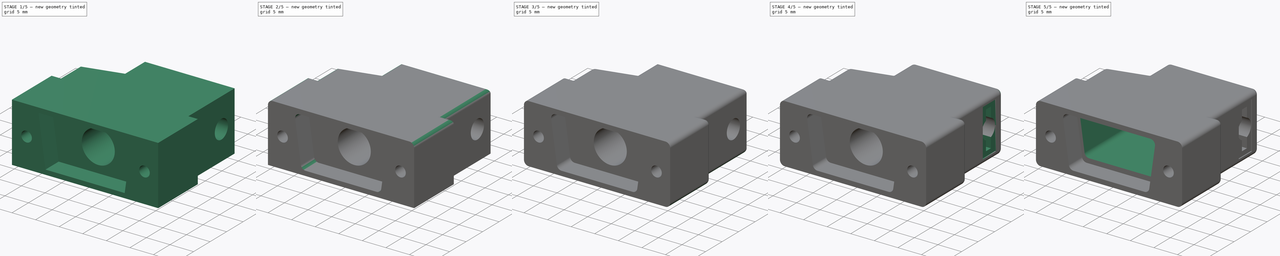
[diagram: build sequence overview — one tinted view per stage of 5, left to right]
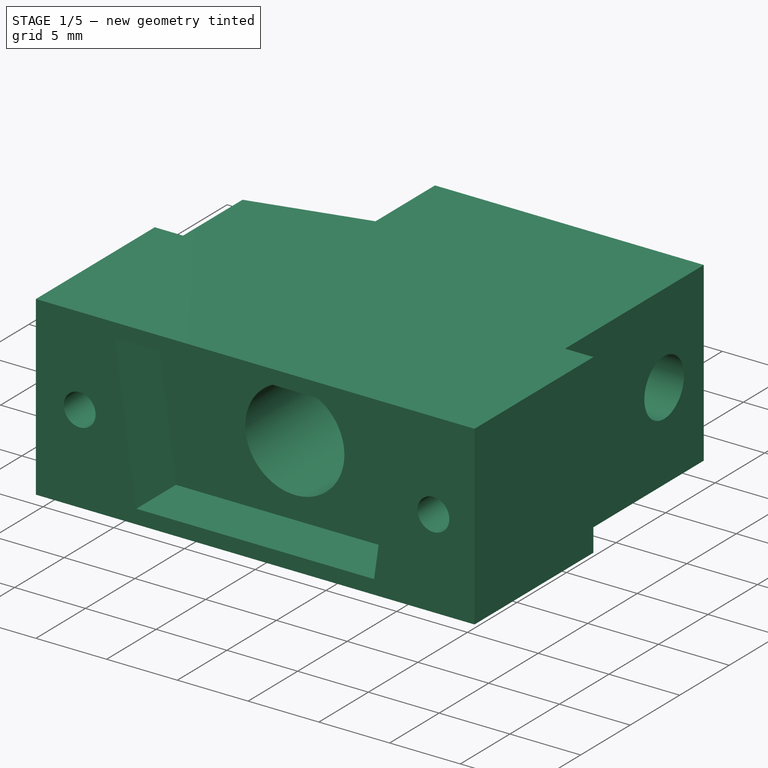
[diagram: stage 1 of 5 — iso view after this stage's code; geometry added in this stage tinted green]
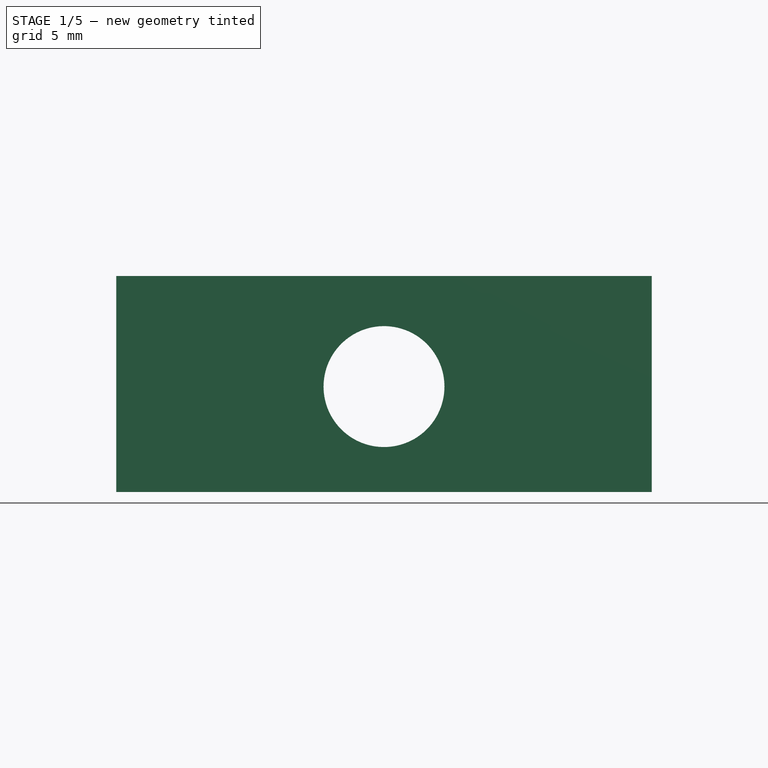
[diagram: stage 1 of 5 — front view after this stage's code; geometry added in this stage tinted green]
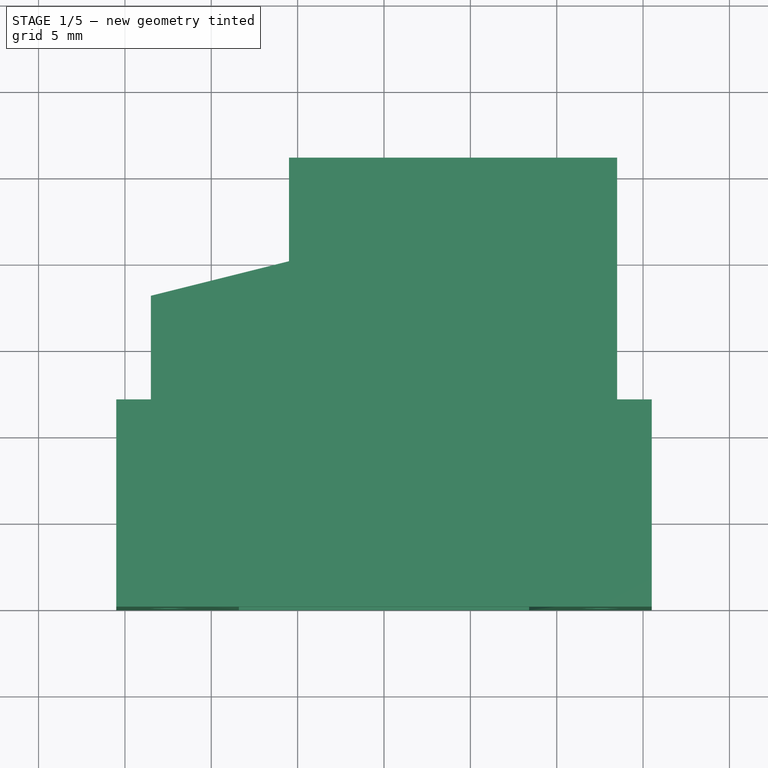
[diagram: stage 1 of 5 — top view after this stage's code; geometry added in this stage tinted green]
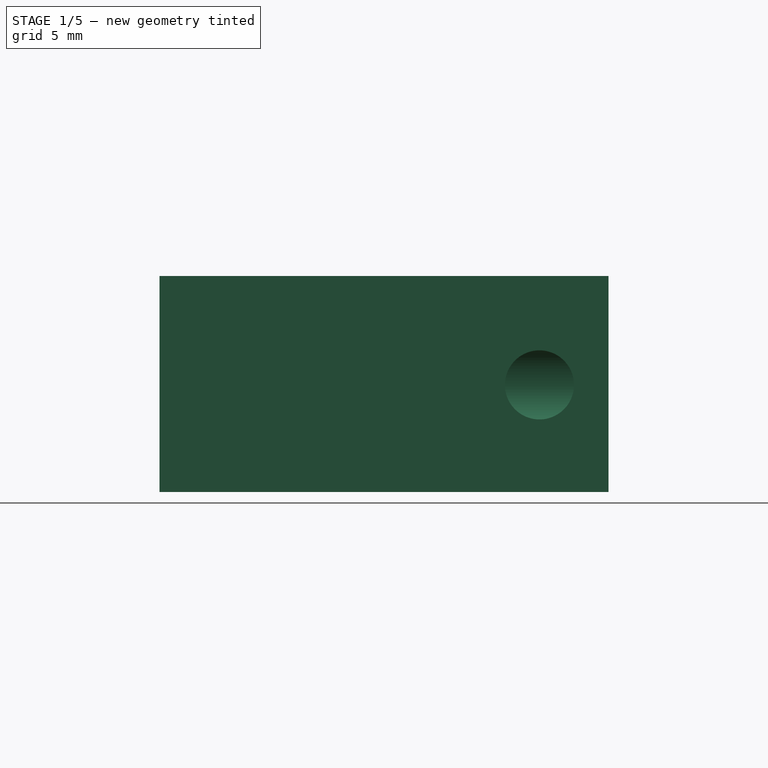
[diagram: stage 1 of 5 — right view after this stage's code; geometry added in this stage tinted green]
FCSTD DOCUMENT  (FreeCAD 0.19R24291 (Git))
Label: ConnectorHousing010
License: All rights reserved
LicenseURL: http://en.wikipedia.org/wiki/All_rights_reserved
objects: PartDesign::Fillet×18, Sketcher::SketchObject×9, PartDesign::Pocket×7, PartDesign::Pad×1, PartDesign::Body×1
note: 62 computed .brp shape members not serialized (recipe doc carries the construction recipe); baked Part::Feature solids carry a one-line shape summary decoded from their .brp

FEATURE [Sketcher::SketchObject] Sketch
  FullyConstrained = true
  MapMode = 5
  Support = -> [XY_Plane]
  sketch-geometry (10):
    g0: LineSegment StartX=-15.5 StartY=0 StartZ=0 EndX=15.5 EndY=0 EndZ=0
    g1: LineSegment StartX=15.5 StartY=0 StartZ=0 EndX=15.5 EndY=12 EndZ=0
    g2: LineSegment StartX=15.5 StartY=12 StartZ=0 EndX=13.5 EndY=12 EndZ=0
    g3: LineSegment StartX=13.5 StartY=12 StartZ=0 EndX=13.5 EndY=26 EndZ=0
    g4: LineSegment StartX=13.5 StartY=26 StartZ=0 EndX=-5.5 EndY=26 EndZ=0
    g5: LineSegment StartX=-5.5 StartY=26 StartZ=0 EndX=-5.5 EndY=20 EndZ=0
    g6: LineSegment StartX=-5.5 StartY=20 StartZ=0 EndX=-13.5 EndY=18 EndZ=0
    g7: LineSegment StartX=-13.5 StartY=18 StartZ=0 EndX=-13.5 EndY=12 EndZ=0
    g8: LineSegment StartX=-13.5 StartY=12 StartZ=0 EndX=-15.5 EndY=12 EndZ=0
    g9: LineSegment StartX=-15.5 StartY=12 StartZ=0 EndX=-15.5 EndY=0 EndZ=0
  constraints (29):
    c: PointOnObject(g0,g-1)
    c: Coincident(g0,g1)
    c: Vertical(g1)
    c: Coincident(g1,g2)
    c: Coincident(g2,g3)
    c: Vertical(g3)
    c: Coincident(g3,g4)
    c: Horizontal(g4)
    c: Coincident(g4,g5)
    c: Vertical(g5)
    c: Coincident(g5,g6)
    c: Coincident(g6,g7)
    c: Vertical(g7)
    c: Coincident(g7,g8)
    c: Coincident(g8,g9)
    c: Coincident(g9,g0)
    c: Vertical(g9)
    c: DistanceX(g0,g0) = 31
    c: DistanceY(g0,g3) = 26
    c: DistanceY(g1,g8) = 0
    c: DistanceY(g2,g7) = 0
    c: DistanceY(g0,g1) = 12
    c: DistanceY(g1,g2) = 0
    c: DistanceX(g2,g1) = 2
    c: DistanceX(g8,g7) = 2
    c: DistanceX(g4,g3) = 19
    c: Symmetric(g0,g0,g-2)
    c: DistanceY(g5,g4) = 6
    c: DistanceY(g7,g6) = 6
FEATURE [PartDesign::Pad] Pad
  Direction = (1,1,1)
  Length = 12.5
  Length2 = 100
  Profile = -> Sketch
  Type = 0
FEATURE [Sketcher::SketchObject] Sketch001
  FullyConstrained = true
  MapMode = 5
  Placement = pos=(0,26,0) rot=(0,0.707107,0.707107;3.14159rad)
  Support = -> [Pad]
  sketch-geometry (1):
    g0: Circle CenterX=0 CenterY=6.1 CenterZ=0 NormalX=0 NormalY=0 NormalZ=1 AngleXU=0 Radius=3.5
  constraints (3):
    c: DistanceY(g-1,g0) = 6.1
    c: DistanceX(g0,g-1) = 0
    c: Diameter(g0) = 7
FEATURE [Sketcher::SketchObject] Sketch002
  FullyConstrained = true
  MapMode = 5
  Placement = pos=(0,0,0) rot=(1,0,0;1.5708rad)
  Support = -> [Pad]
  sketch-geometry (4):
    g0: LineSegment StartX=-9.9 StartY=11.5 StartZ=0 EndX=9.9 EndY=11.5 EndZ=0
    g1: LineSegment StartX=9.9 StartY=11.5 StartZ=0 EndX=8.4 EndY=1 EndZ=0
    g2: LineSegment StartX=8.4 StartY=1 StartZ=0 EndX=-8.4 EndY=1 EndZ=0
    g3: LineSegment StartX=-8.4 StartY=1 StartZ=0 EndX=-9.9 EndY=11.5 EndZ=0
  constraints (10):
    c: Coincident(g0,g1)
    c: Coincident(g1,g2)
    c: Coincident(g2,g3)
    c: Coincident(g3,g0)
    c: DistanceX(g0,g0) = 19.8
    c: Symmetric(g0,g0,g-2)
    c: Symmetric(g2,g1,g-2)
    c: DistanceX(g2,g1) = 16.8
    c: DistanceY(g1,g0) = 10.5
    c: DistanceY(g-1,g0) = 11.5
FEATURE [PartDesign::Pocket] Pocket
  BaseFeature = -> Pad
  Length = 4
  Length2 = 100
  Profile = -> Sketch002
  Type = 0
FEATURE [PartDesign::Pocket] Pocket001
  BaseFeature = -> Pocket
  Length = 5
  Length2 = 100
  Profile = -> Sketch001
  Type = 1
FEATURE [Sketcher::SketchObject] Sketch003
  ExternalGeometry = -> [Pocket001]
  FullyConstrained = false
  MapMode = 5
  Placement = pos=(13.5,0,0) rot=(0.57735,0.57735,0.57735;2.0944rad)
  Support = -> [Pocket001]
  sketch-geometry (1):
    g0: Circle CenterX=22 CenterY=6.19827 CenterZ=0 NormalX=0 NormalY=0 NormalZ=1 AngleXU=0 Radius=2
  constraints (2):
    c: DistanceX(g0,g-3) = 4
    c: Diameter(g0) = 4
FEATURE [PartDesign::Pocket] Pocket002
  BaseFeature = -> Pocket001
  Length = 5
  Length2 = 100
  Profile = -> Sketch003
  Type = 2
FEATURE [Sketcher::SketchObject] Sketch004
  FullyConstrained = false
  MapMode = 5
  Placement = pos=(0,0,0) rot=(1,0,0;1.5708rad)
  Support = -> [Pocket002]
  sketch-geometry (2):
    g0: Circle CenterX=-12.4066 CenterY=6.25 CenterZ=0 NormalX=0 NormalY=0 NormalZ=1 AngleXU=0 Radius=1.125
    g1: Circle CenterX=12.5934 CenterY=6.25 CenterZ=0 NormalX=0 NormalY=0 NormalZ=1 AngleXU=0 Radius=1.125
  constraints (5):
    c: Diameter(g0) = 2.25
    c: Diameter(g1) = 2.25
    c: DistanceY(g1,g0) = 0
    c: DistanceX(g0,g1) = 25
    c: DistanceY(g-1,g1) = 6.25
FEATURE [PartDesign::Pocket] Pocket003
  BaseFeature = -> Pocket002
  Length = 8
  Length2 = 100
  Profile = -> Sketch004
  Type = 0
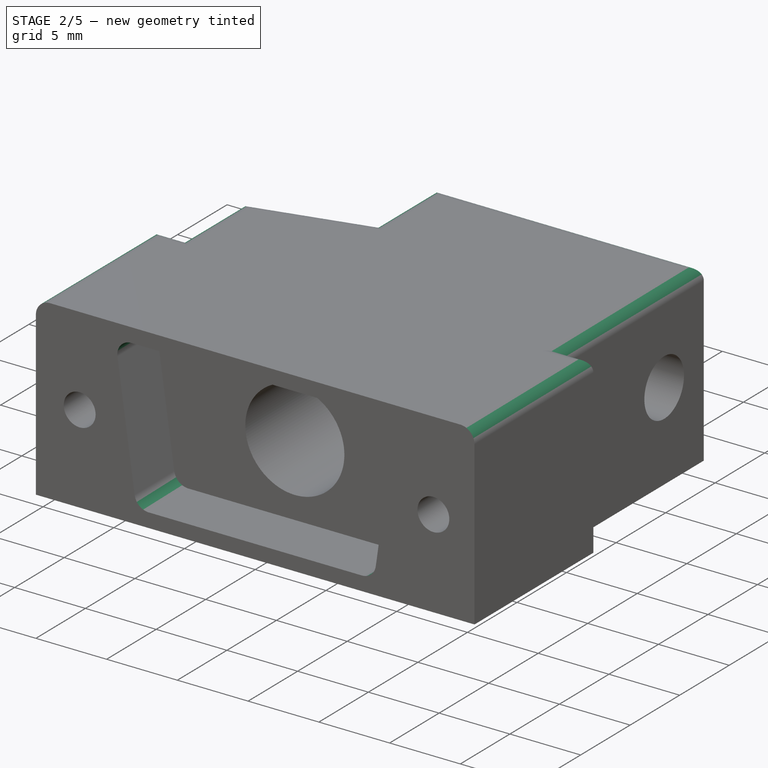
[diagram: stage 2 of 5 — iso view after this stage's code; geometry added in this stage tinted green]
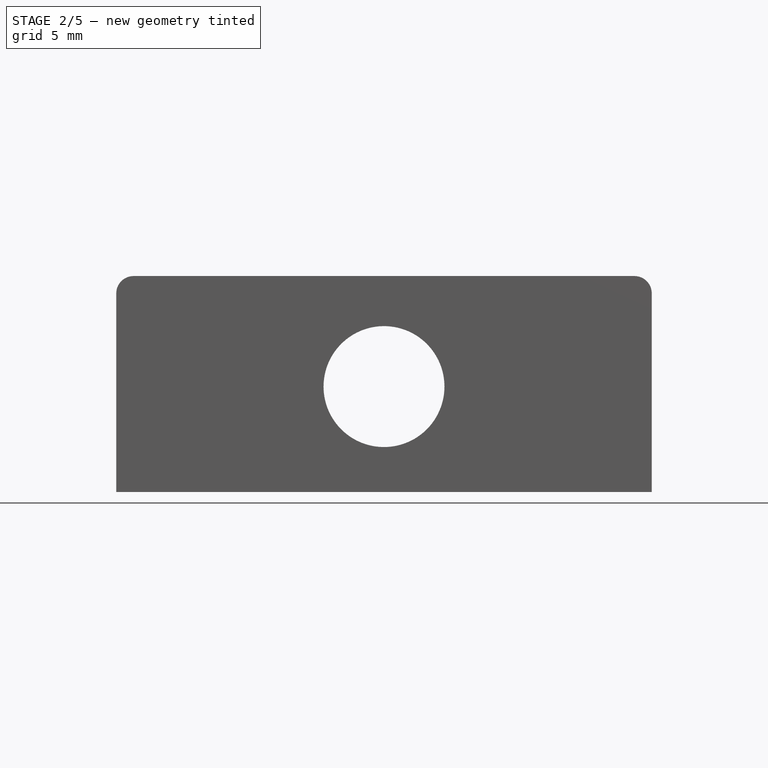
[diagram: stage 2 of 5 — front view after this stage's code; geometry added in this stage tinted green]
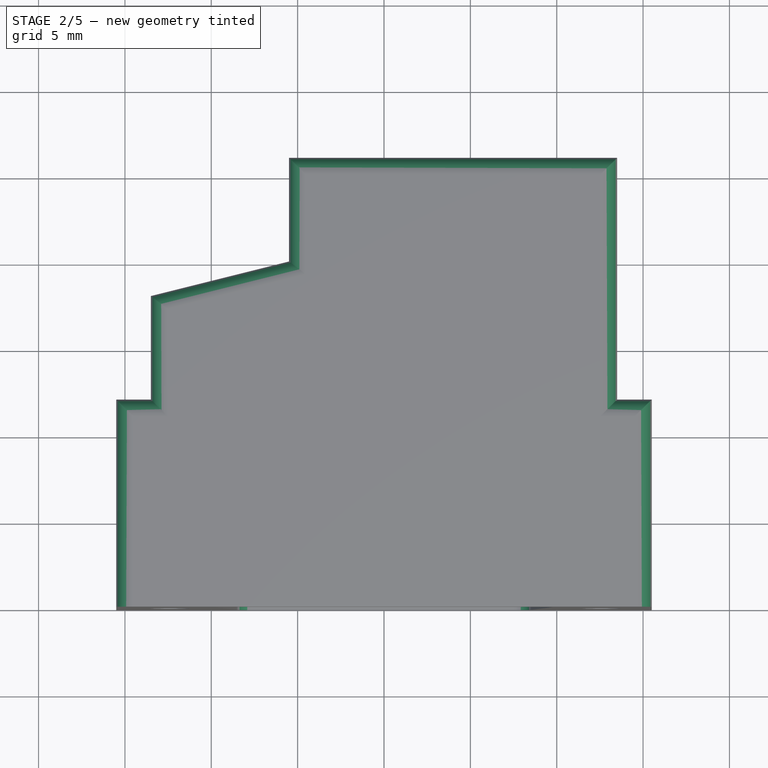
[diagram: stage 2 of 5 — top view after this stage's code; geometry added in this stage tinted green]
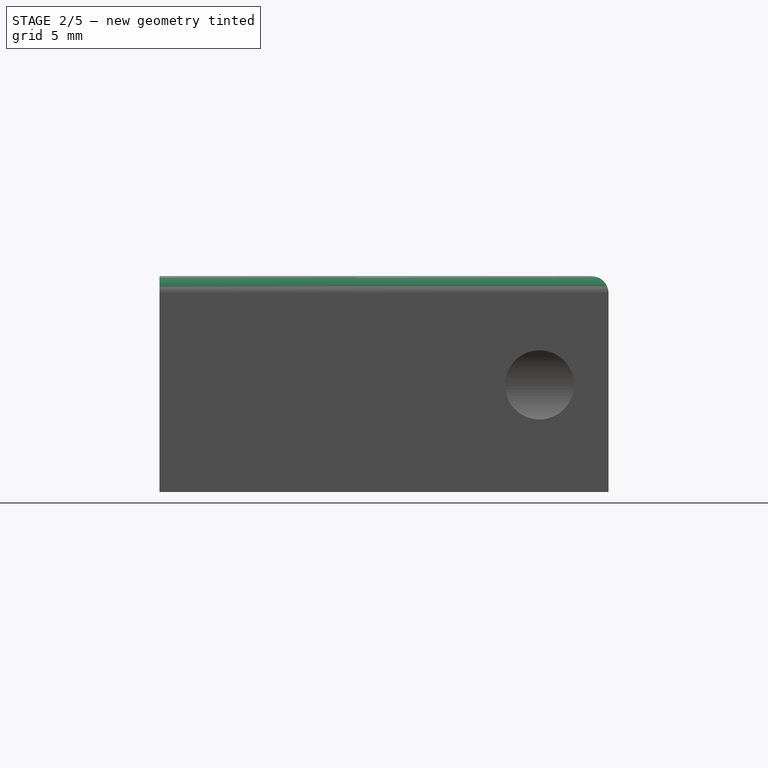
[diagram: stage 2 of 5 — right view after this stage's code; geometry added in this stage tinted green]
FEATURE [PartDesign::Fillet] Fillet
  Base = -> Pocket003 [Edge38]
  BaseFeature = -> Pocket003
  Radius = 1
  SupportTransform = false
FEATURE [PartDesign::Fillet] Fillet001
  Base = -> Fillet [Edge19]
  BaseFeature = -> Fillet
  Radius = 1
  SupportTransform = false
FEATURE [PartDesign::Fillet] Fillet002
  Base = -> Fillet001 [Edge20]
  BaseFeature = -> Fillet001
  Radius = 1
  SupportTransform = false
FEATURE [PartDesign::Fillet] Fillet003
  Base = -> Fillet002 [Edge21]
  BaseFeature = -> Fillet002
  Radius = 1
  SupportTransform = false
FEATURE [PartDesign::Fillet] Fillet004
  Base = -> Fillet003 [Edge42,Edge43,Edge44,Edge45,Edge46,Edge47,Edge48,Edge49,Edge33]
  BaseFeature = -> Fillet003
  Radius = 1
  SupportTransform = false
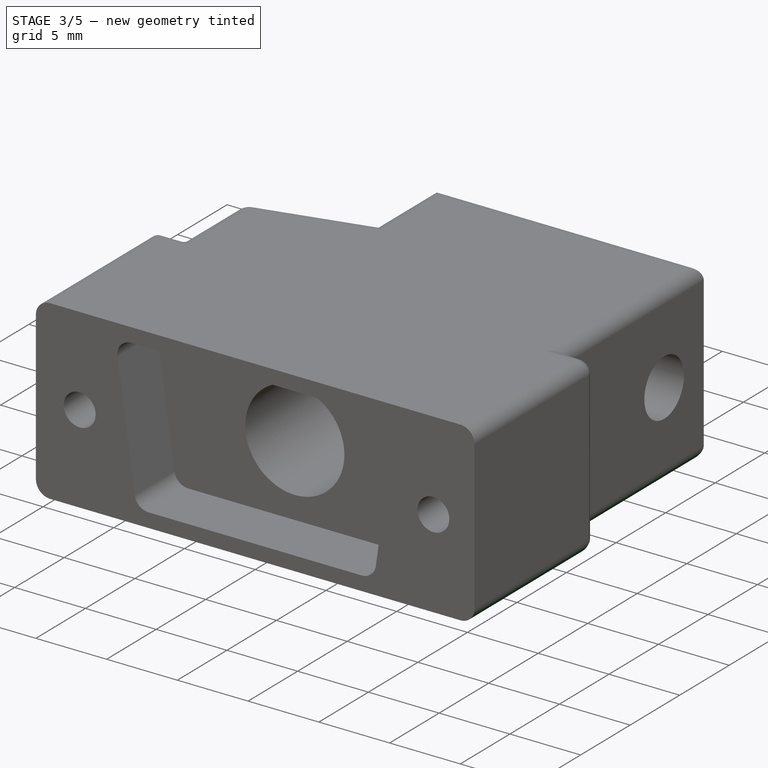
[diagram: stage 3 of 5 — iso view after this stage's code; geometry added in this stage tinted green]
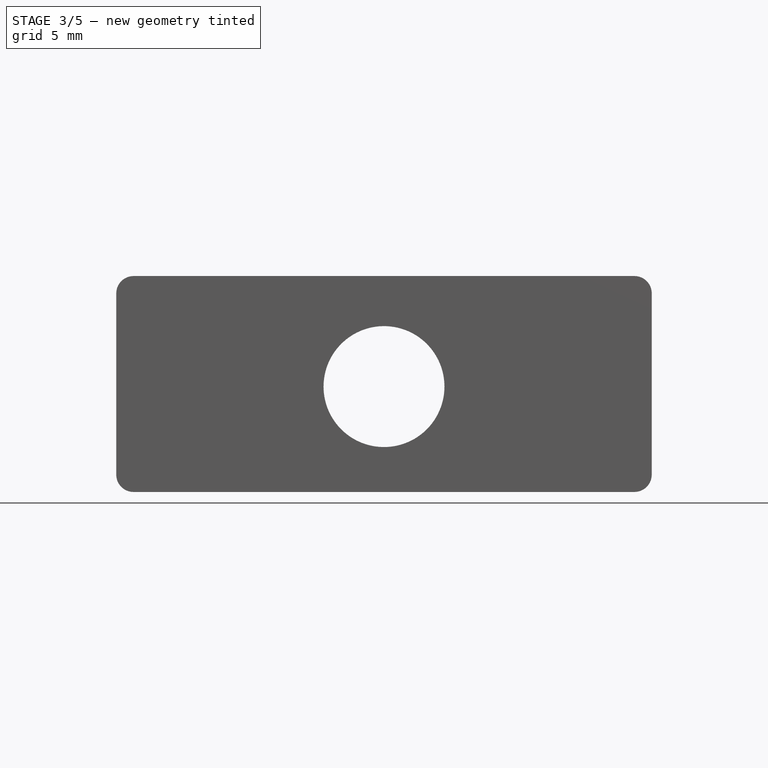
[diagram: stage 3 of 5 — front view after this stage's code; geometry added in this stage tinted green]
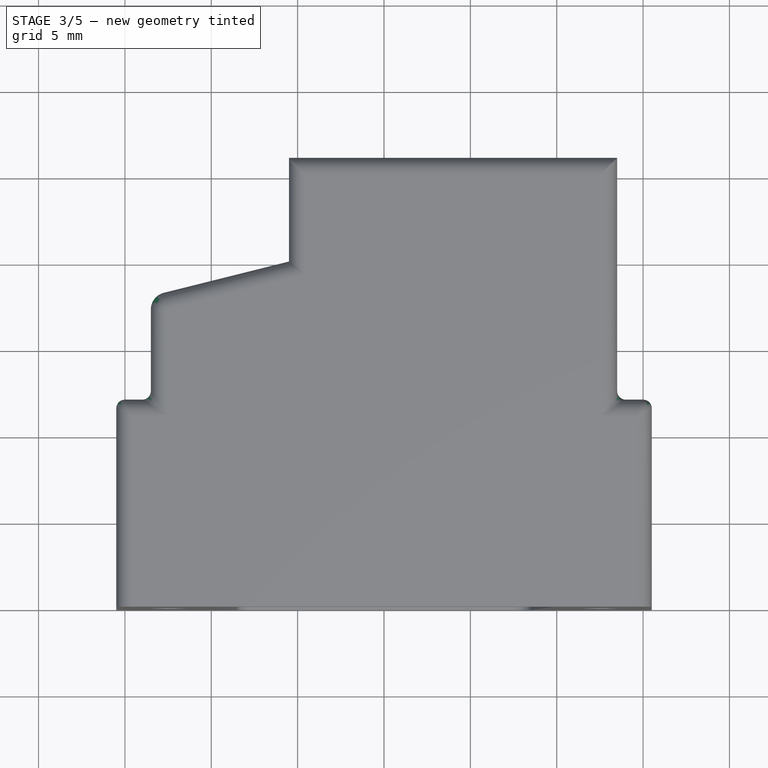
[diagram: stage 3 of 5 — top view after this stage's code; geometry added in this stage tinted green]
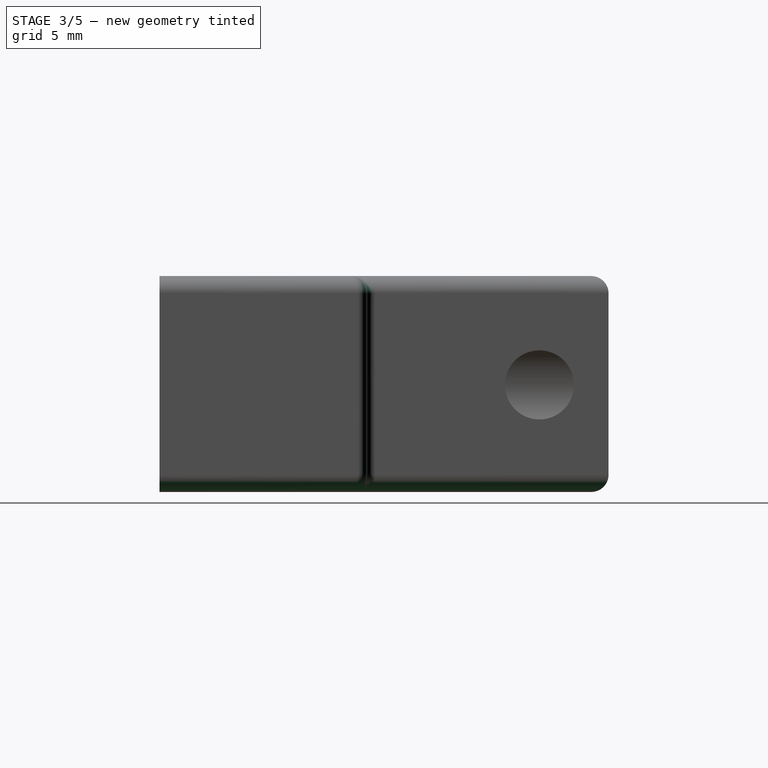
[diagram: stage 3 of 5 — right view after this stage's code; geometry added in this stage tinted green]
FEATURE [PartDesign::Fillet] Fillet005
  Base = -> Fillet004 [Edge19,Edge29,Edge28,Edge27,Edge26,Edge25,Edge24,Edge23,Edge22]
  BaseFeature = -> Fillet004
  Radius = 1
  SupportTransform = false
FEATURE [PartDesign::Fillet] Fillet006
  Base = -> Fillet005 [Edge96]
  BaseFeature = -> Fillet005
  Radius = 1
  SupportTransform = false
FEATURE [PartDesign::Fillet] Fillet007
  Base = -> Fillet006 [Edge25]
  BaseFeature = -> Fillet006
  Radius = 0.5
  SupportTransform = false
FEATURE [PartDesign::Fillet] Fillet008
  Base = -> Fillet007 [Edge77]
  BaseFeature = -> Fillet007
  Radius = 0.5
  SupportTransform = false
FEATURE [PartDesign::Fillet] Fillet009
  Base = -> Fillet008 [Edge87]
  BaseFeature = -> Fillet008
  Radius = 0.5
  SupportTransform = false
FEATURE [PartDesign::Fillet] Fillet010
  Base = -> Fillet009 [Edge105]
  BaseFeature = -> Fillet009
  Radius = 0.5
  SupportTransform = false
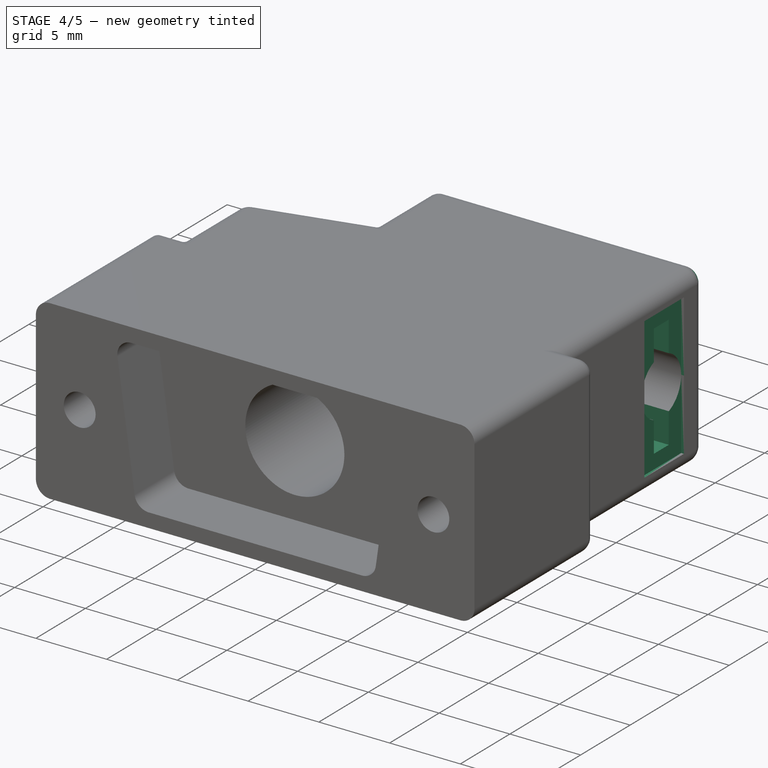
[diagram: stage 4 of 5 — iso view after this stage's code; geometry added in this stage tinted green]
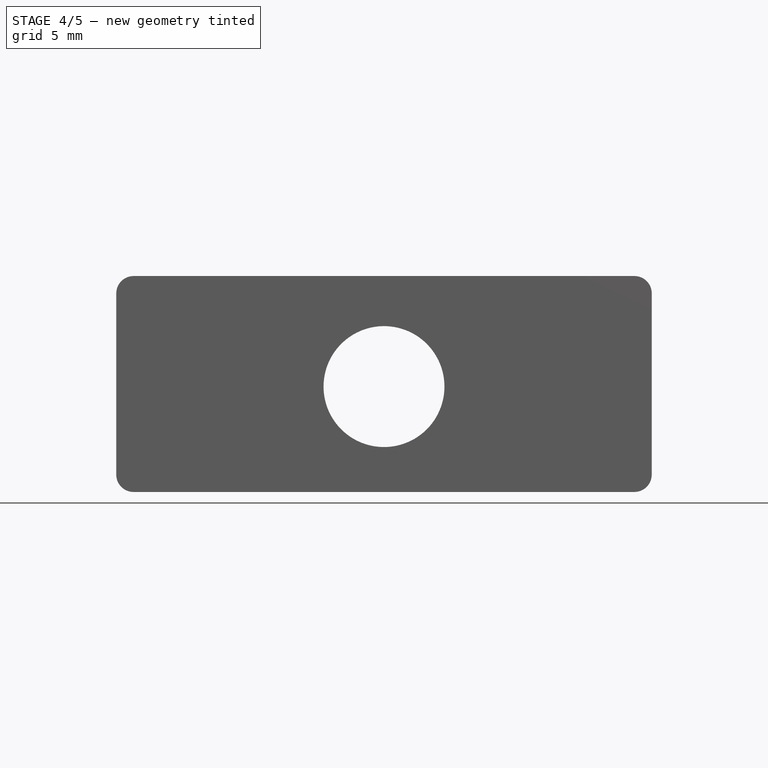
[diagram: stage 4 of 5 — front view after this stage's code; geometry added in this stage tinted green]
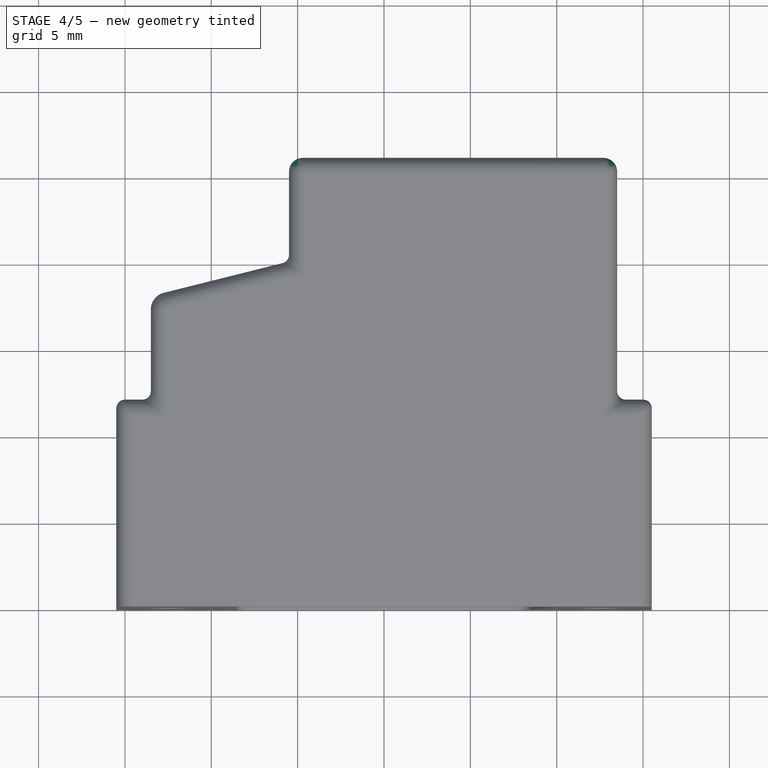
[diagram: stage 4 of 5 — top view after this stage's code; geometry added in this stage tinted green]
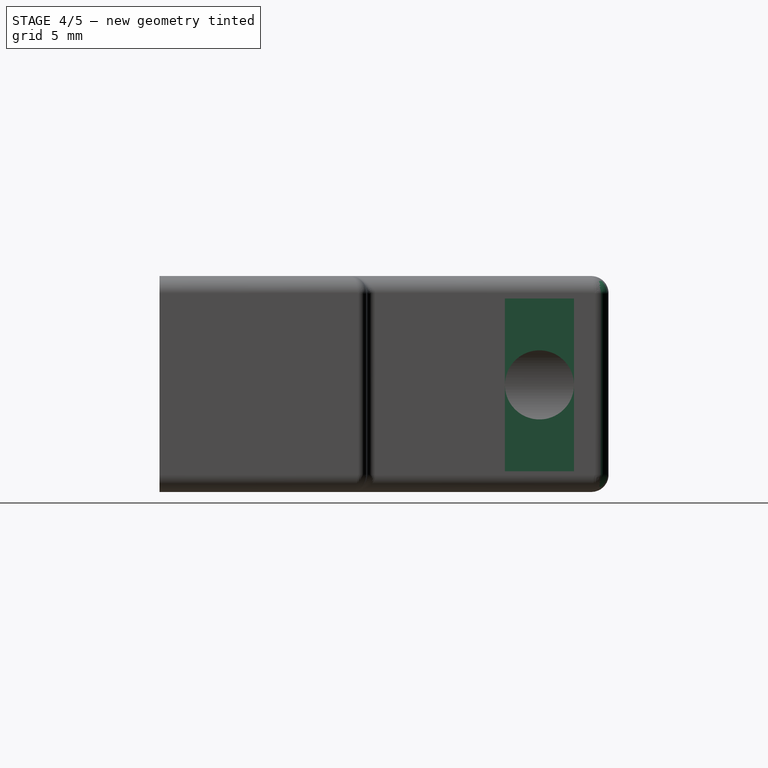
[diagram: stage 4 of 5 — right view after this stage's code; geometry added in this stage tinted green]
FEATURE [PartDesign::Fillet] Fillet011
  Base = -> Fillet010 [Edge116]
  BaseFeature = -> Fillet010
  Radius = 0.5
  SupportTransform = false
FEATURE [PartDesign::Fillet] Fillet012
  Base = -> Fillet011 [Edge65]
  BaseFeature = -> Fillet011
  Radius = 0.8
  SupportTransform = false
FEATURE [PartDesign::Fillet] Fillet013
  Base = -> Fillet012 [Edge66]
  BaseFeature = -> Fillet012
  Radius = 0.8
  SupportTransform = false
FEATURE [Sketcher::SketchObject] Sketch005
  ExternalGeometry = -> [Fillet013]
  FullyConstrained = true
  MapMode = 5
  Placement = pos=(13.5,0,0) rot=(0.57735,0.57735,0.57735;2.0944rad)
  Support = -> [Fillet013]
  sketch-geometry (4):
    g0: LineSegment StartX=21.25 StartY=10.1983 StartZ=0 EndX=22.75 EndY=10.1983 EndZ=0
    g1: LineSegment StartX=22.75 StartY=10.1983 StartZ=0 EndX=22.75 EndY=2.19827 EndZ=0
    g2: LineSegment StartX=22.75 StartY=2.19827 StartZ=0 EndX=21.25 EndY=2.19827 EndZ=0
    g3: LineSegment StartX=21.25 StartY=2.19827 StartZ=0 EndX=21.25 EndY=10.1983 EndZ=0
  constraints (12):
    c: Coincident(g0,g1)
    c: Coincident(g1,g2)
    c: Coincident(g2,g3)
    c: Coincident(g3,g0)
    c: Horizontal(g0)
    c: Horizontal(g2)
    c: Vertical(g1)
    c: Vertical(g3)
    c: DistanceX(g0,g0) = 1.5
    c: DistanceY(g1,g0) = 8
    c: DistanceX(g0,g-3) = 0.75
    c: DistanceY(g-3,g0) = 4
FEATURE [PartDesign::Pocket] Pocket004
  BaseFeature = -> Fillet013
  Length = 7
  Length2 = 100
  Profile = -> Sketch005
  Type = 0
FEATURE [Sketcher::SketchObject] Sketch006
  ExternalGeometry = -> [Pocket004]
  FullyConstrained = true
  MapMode = 5
  Placement = pos=(13.5,0,0) rot=(0.57735,0.57735,0.57735;2.0944rad)
  Support = -> [Pocket004]
  sketch-geometry (4):
    g0: LineSegment StartX=20 StartY=11.1983 StartZ=0 EndX=24 EndY=11.1983 EndZ=0
    g1: LineSegment StartX=24 StartY=11.1983 StartZ=0 EndX=24 EndY=1.19826 EndZ=0
    g2: LineSegment StartX=24 StartY=1.19826 StartZ=0 EndX=20 EndY=1.19826 EndZ=0
    g3: LineSegment StartX=20 StartY=1.19826 StartZ=0 EndX=20 EndY=11.1983 EndZ=0
  constraints (12):
    c: Coincident(g0,g1)
    c: Coincident(g1,g2)
    c: Coincident(g2,g3)
    c: Coincident(g3,g0)
    c: Horizontal(g0)
    c: Horizontal(g2)
    c: Vertical(g1)
    c: Vertical(g3)
    c: DistanceY(g1,g0) = 10
    c: DistanceY(g-3,g0) = 5
    c: DistanceX(g0,g0) = 4
    c: DistanceX(g-3,g0) = 2
FEATURE [PartDesign::Pocket] Pocket005
  BaseFeature = -> Pocket004
  Length = 0.2
  Length2 = 100
  Profile = -> Sketch006
  Type = 0
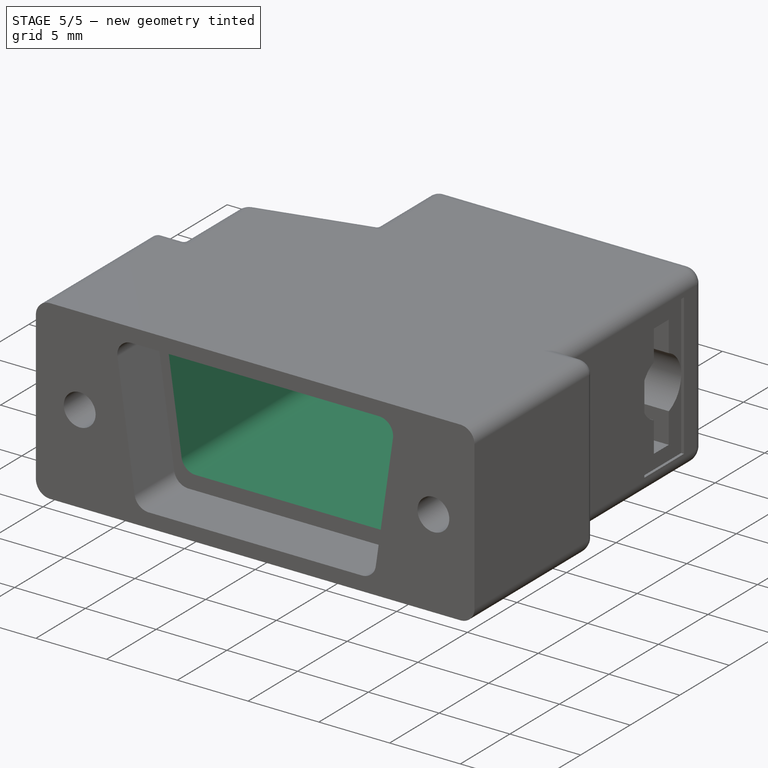
[diagram: stage 5 of 5 — iso view after this stage's code; geometry added in this stage tinted green]
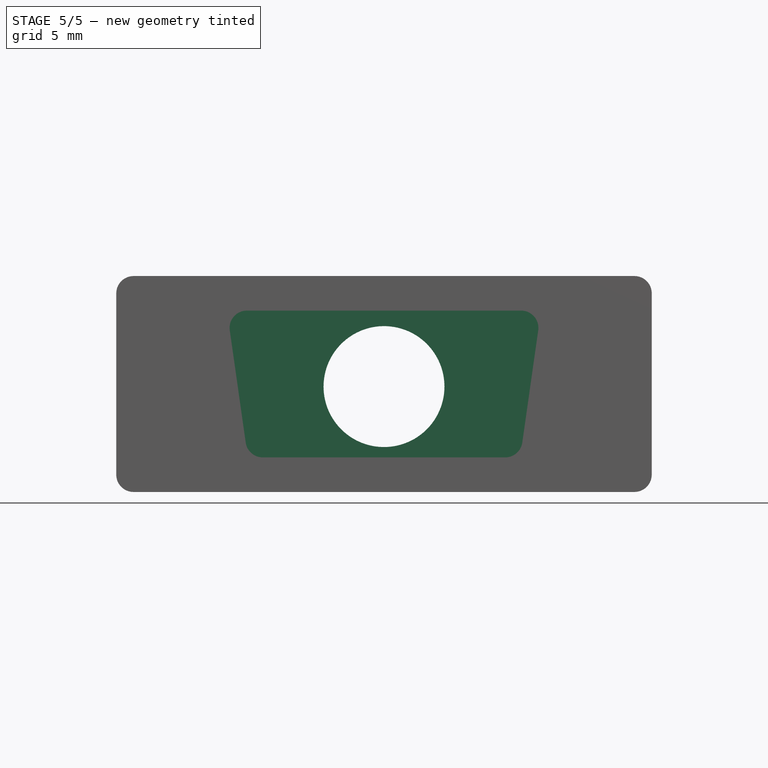
[diagram: stage 5 of 5 — front view after this stage's code; geometry added in this stage tinted green]
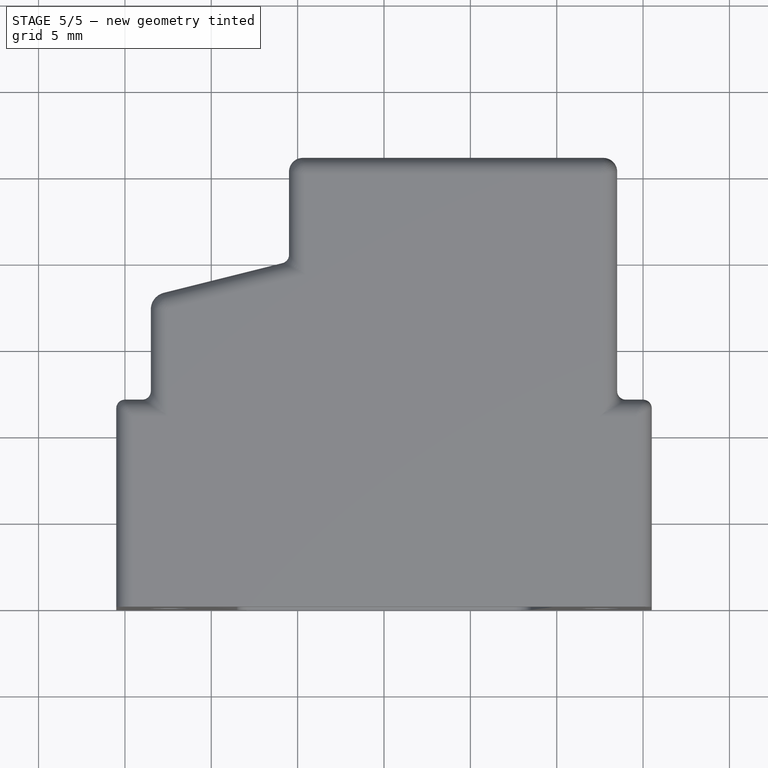
[diagram: stage 5 of 5 — top view after this stage's code; geometry added in this stage tinted green]
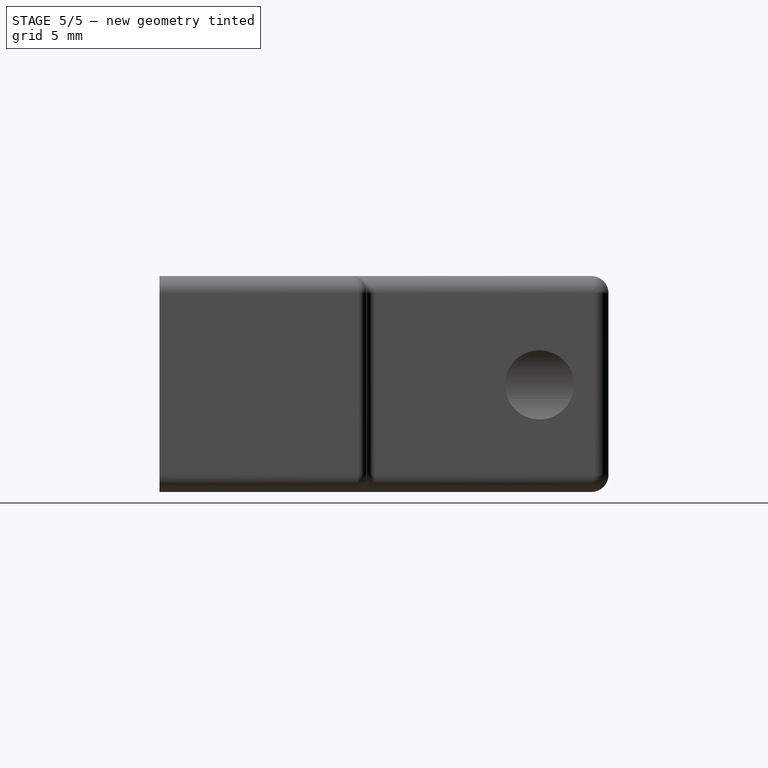
[diagram: stage 5 of 5 — right view after this stage's code; geometry added in this stage tinted green]
FEATURE [Sketcher::SketchObject] Sketch007
  FullyConstrained = true
  MapMode = 5
  Placement = pos=(0,4,-9e-16) rot=(1,0,0;1.5708rad)
  Support = -> [Pocket005]
FEATURE [Sketcher::SketchObject] Sketch008
  ExternalGeometry = -> [Pocket005]
  FullyConstrained = false
  MapMode = 5
  Placement = pos=(0,4,-9e-16) rot=(1,0,0;1.5708rad)
  Support = -> [Pocket005]
  sketch-geometry (4):
    g0: LineSegment StartX=-9.09153 StartY=10.5 StartZ=0 EndX=9.09153 EndY=10.5 EndZ=0
    g1: LineSegment StartX=9.09153 StartY=10.5 StartZ=0 EndX=7.88371 EndY=2 EndZ=0
    g2: LineSegment StartX=7.88371 StartY=2 StartZ=0 EndX=-7.88371 EndY=2 EndZ=0
    g3: LineSegment StartX=-7.88371 StartY=2 StartZ=0 EndX=-9.09153 EndY=10.5 EndZ=0
  constraints (8):
    c: Coincident(g0,g1)
    c: Coincident(g1,g2)
    c: Coincident(g2,g3)
    c: Coincident(g3,g0)
    c: Symmetric(g2,g1,g-2)
    c: Symmetric(g0,g0,g-2)
    c: DistanceY(g-4,g1) = 1
    c: DistanceY(g0,g-3) = 1
FEATURE [PartDesign::Pocket] Pocket006
  BaseFeature = -> Pocket005
  Length = 13
  Length2 = 100
  Profile = -> Sketch008
  Type = 0
FEATURE [PartDesign::Fillet] Fillet014
  Base = -> Pocket006 [Edge182]
  BaseFeature = -> Pocket006
  Radius = 1
  SupportTransform = false
FEATURE [PartDesign::Fillet] Fillet015
  Base = -> Fillet014 [Edge12]
  BaseFeature = -> Fillet014
  Radius = 1
  SupportTransform = false
FEATURE [PartDesign::Fillet] Fillet016
  Base = -> Fillet015 [Edge16]
  BaseFeature = -> Fillet015
  Radius = 1
  SupportTransform = false
FEATURE [PartDesign::Fillet] Fillet017
  Base = -> Fillet016 [Edge19]
  BaseFeature = -> Fillet016
  Radius = 1
  SupportTransform = false
FEATURE [PartDesign::Body] Body
  Group = -> [Sketch,Pad,Sketch001,Sketch002,Pocket,Pocket001,Sketch003,Pocket002,Sketch004,Pocket003,Fillet,Fillet001,Fillet002,Fillet003,Fillet004,Fillet005,Fillet006,Fillet007,Fillet008,Fillet009,Fillet010,Fillet011,Fillet012,Fillet013,Sketch005,Pocket004,Sketch006,Pocket005,Sketch007,Sketch008,Pocket006,Fillet014,Fillet015,Fillet016,Fillet017]
  Origin = -> Origin
  Tip = -> Fillet017
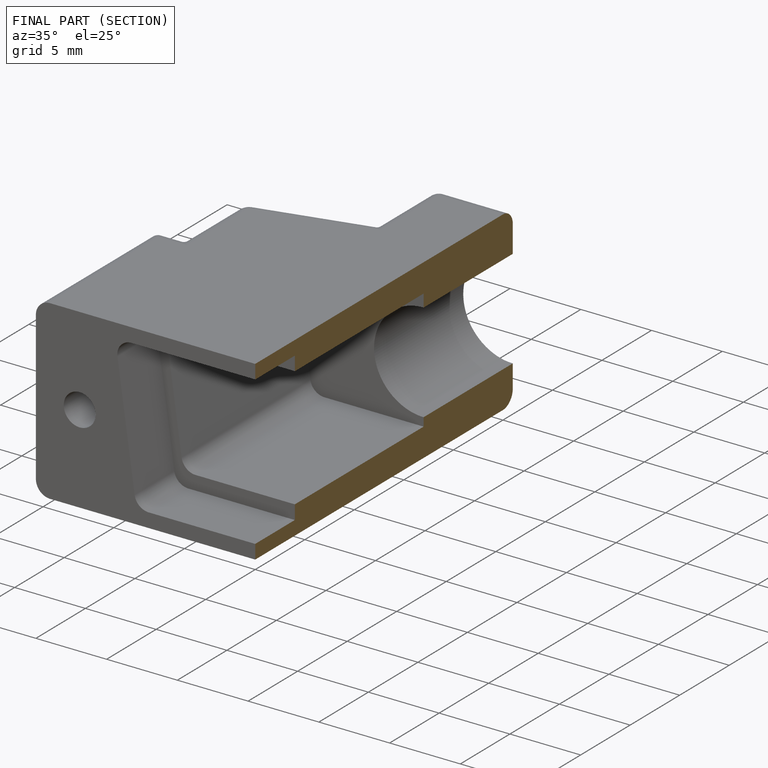
[diagram: finished part — half-section view (interior)]
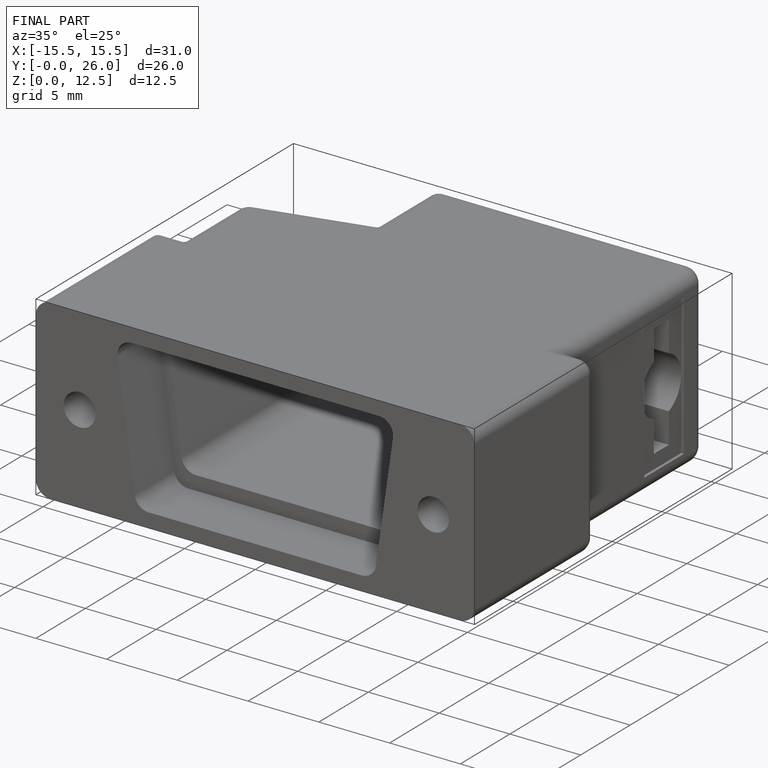
[diagram: finished part — iso view with bounding-box wireframe]
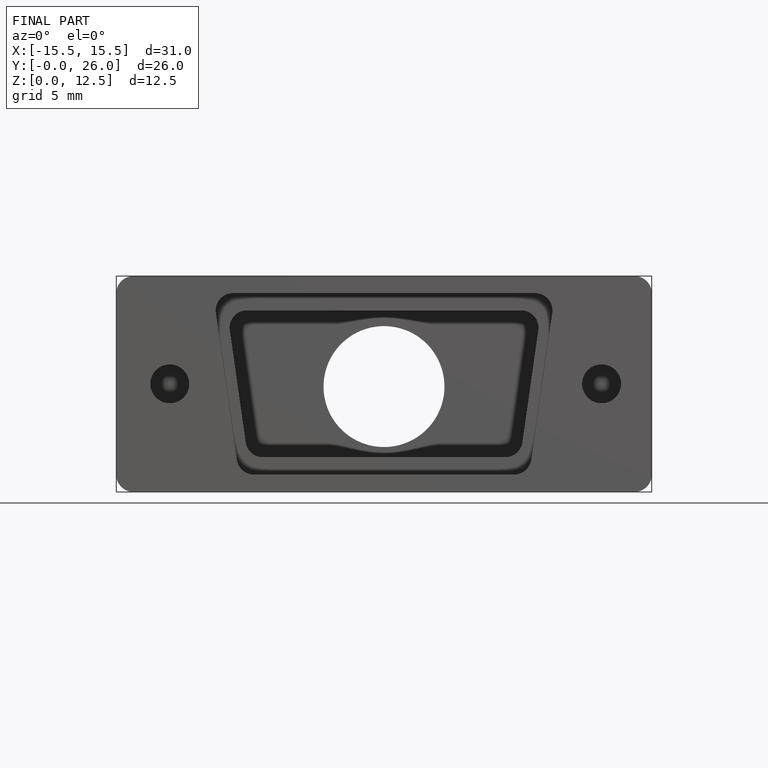
[diagram: finished part — front view with bounding-box wireframe]
